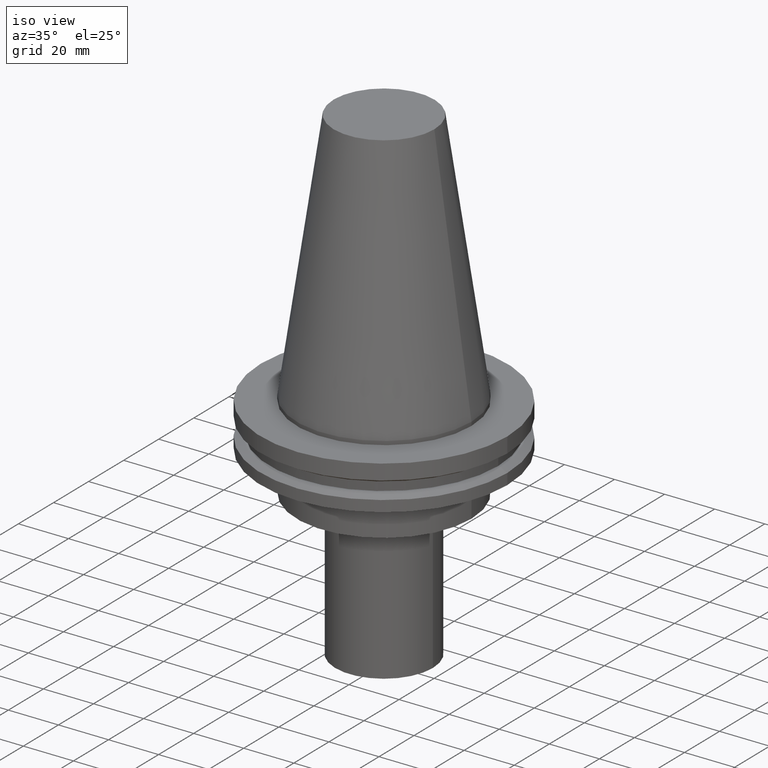
[diagram: clean part render]
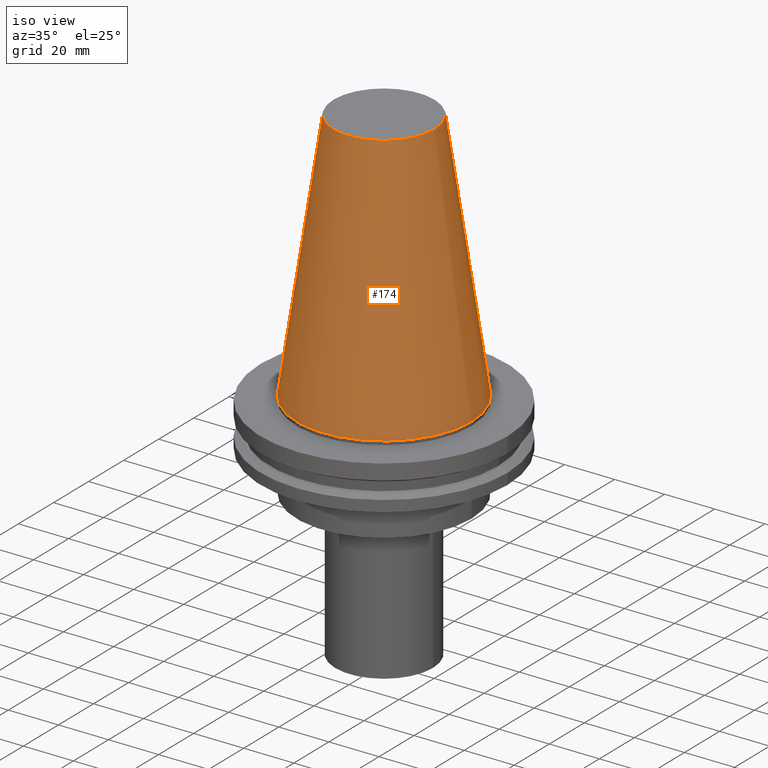
[diagram: tour spotlight — one face highlighted and labeled with its STEP entity id]
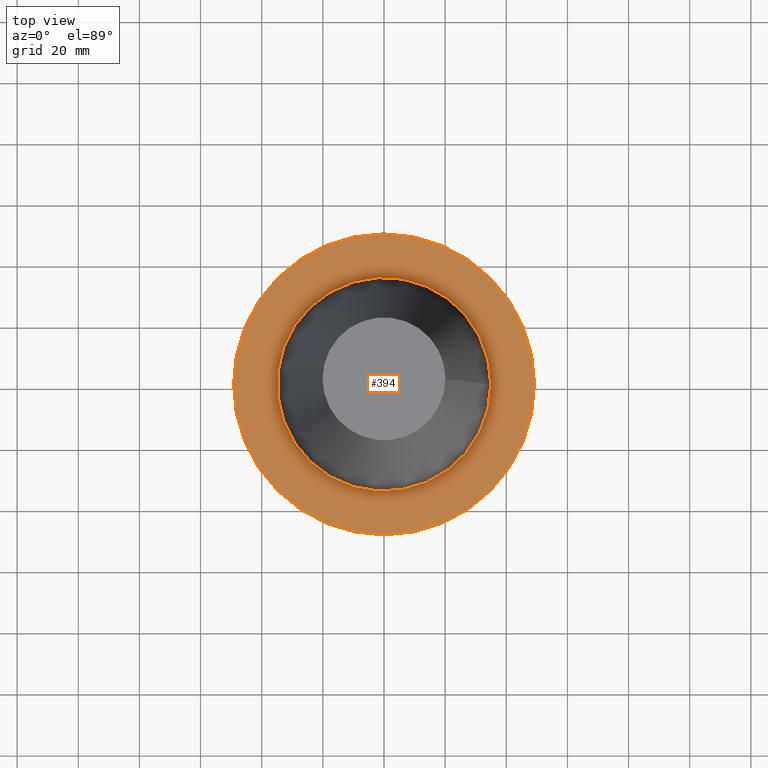
[diagram: tour spotlight — one face highlighted and labeled with its STEP entity id]
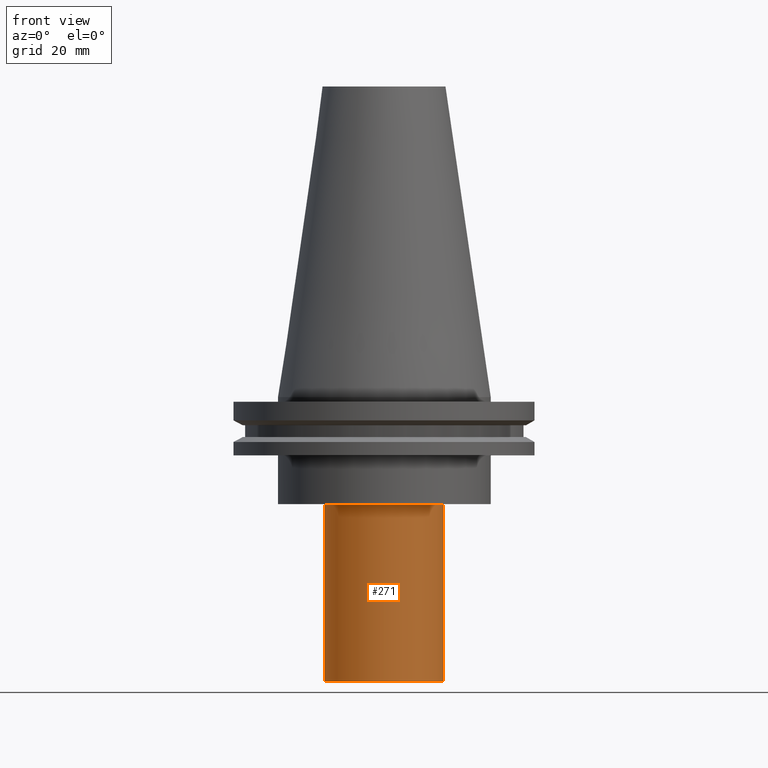
[diagram: tour spotlight — one face highlighted and labeled with its STEP entity id]
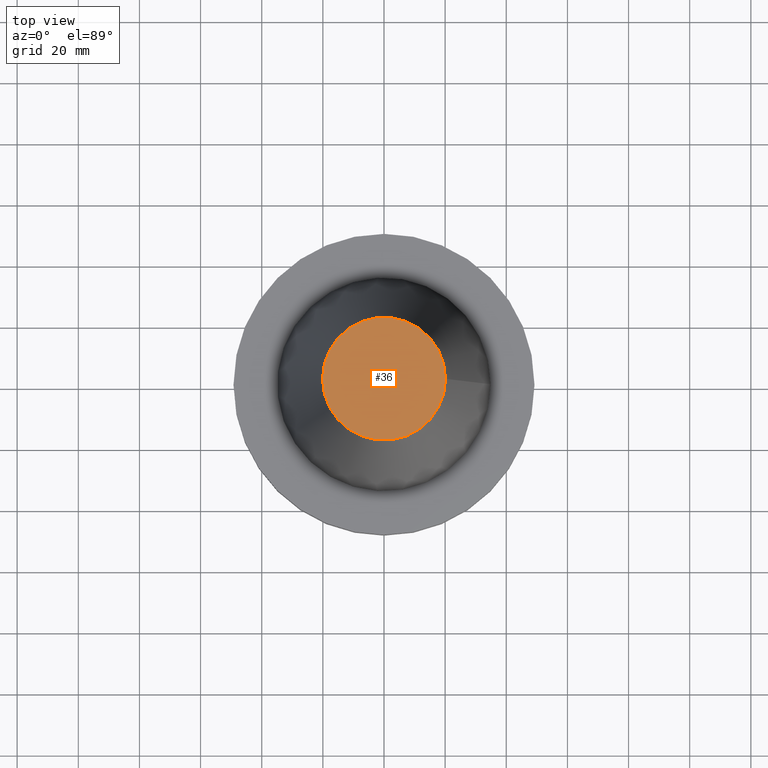
[diagram: tour spotlight — one face highlighted and labeled with its STEP entity id]
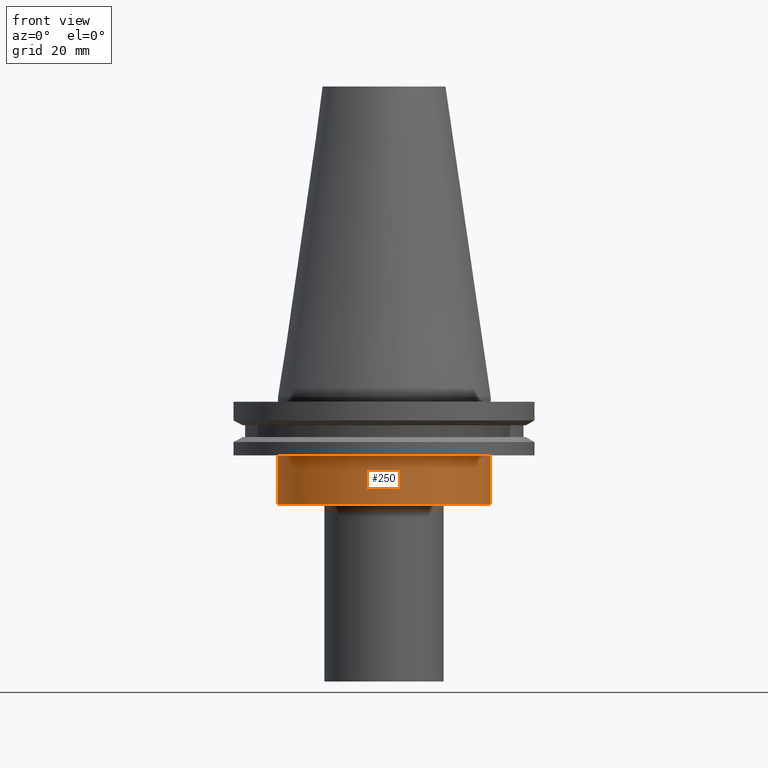
[diagram: tour spotlight — one face highlighted and labeled with its STEP entity id]
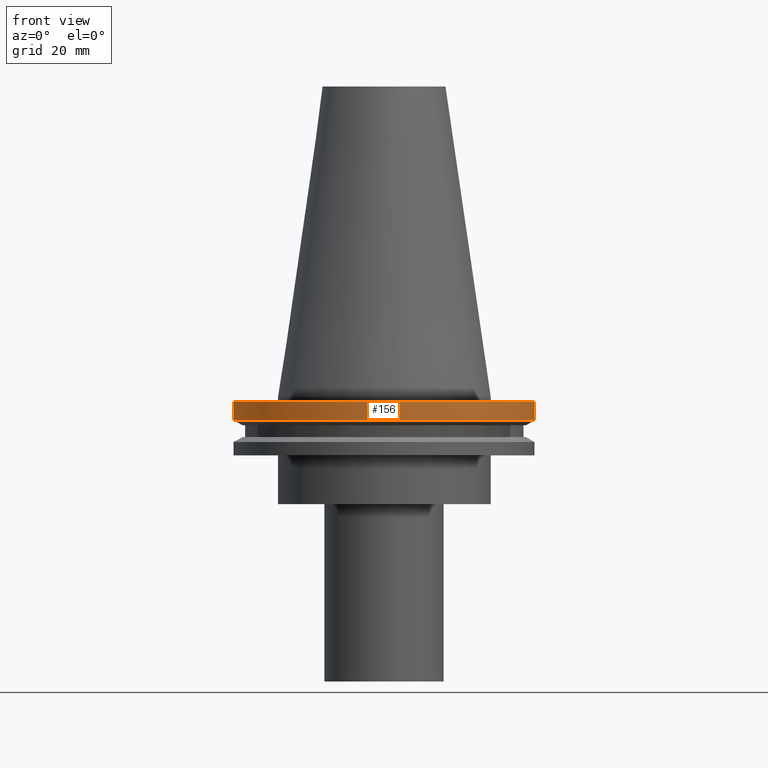
[diagram: tour spotlight — one face highlighted and labeled with its STEP entity id]
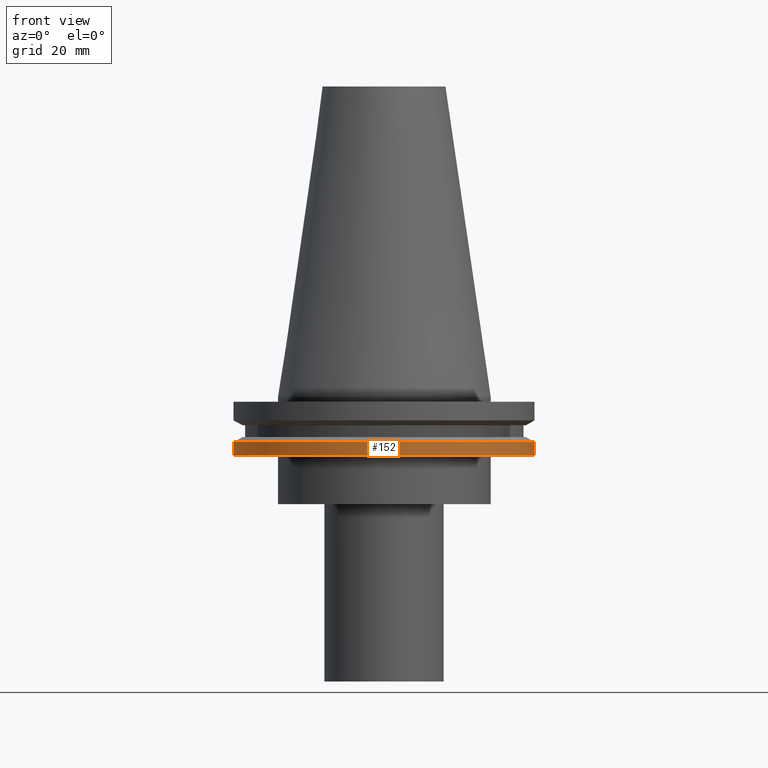
[diagram: tour spotlight — one face highlighted and labeled with its STEP entity id]
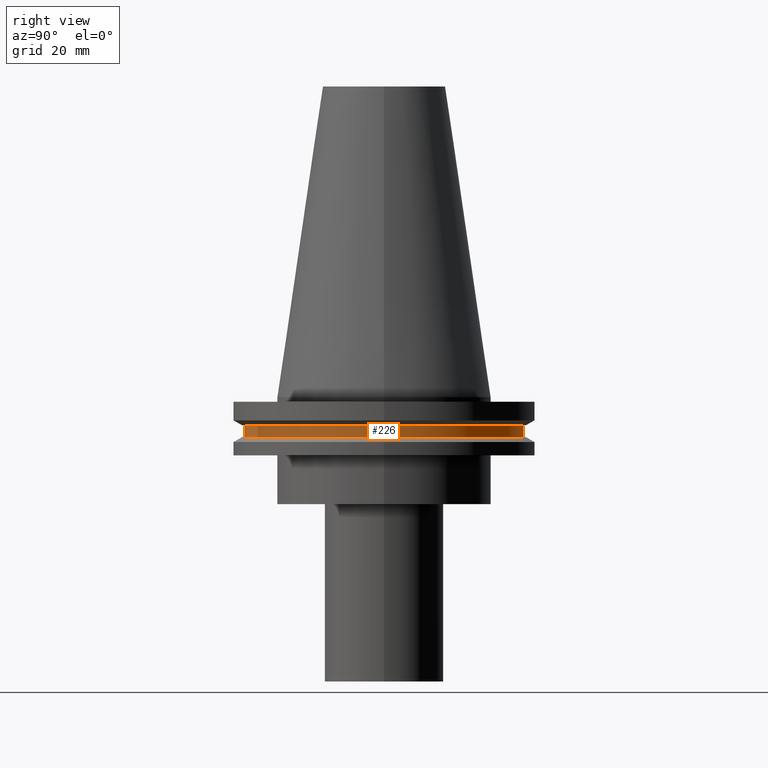
[diagram: tour spotlight — one face highlighted and labeled with its STEP entity id]
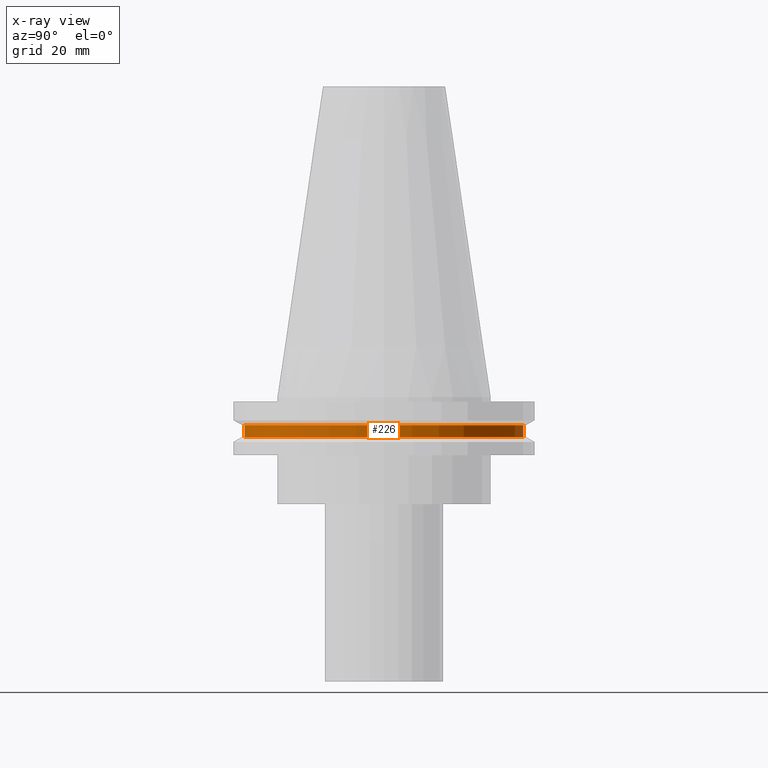
[diagram: x-ray of the same camera — body ghosted, this tour face saturated]
A machine part: a face-by-face anatomy tour. The part has 16 B-rep faces; the first image is the clean iso view, then the 8 largest visible faces are spotlighted one at a time (largest first), each with its STEP entity span.

Face 1 — iso view, entity #174. In plain terms, the highlighted conical surface has half-angle 8.297 deg.
Definition (entity closure, byte-faithful):
#22 = ORIENTED_EDGE ( 'NONE', *, *, #234, .T. ) ;
#29 = CIRCLE ( 'NONE', #160, 20.10819343178871321 ) ;
#34 = AXIS2_PLACEMENT_3D ( 'NONE', #340, #65, #283 ) ;
#65 = DIRECTION ( 'NONE',  ( -0.000000000000000000, -0.000000000000000000, 1.000000000000000000 ) ) ;
#67 = DIRECTION ( 'NONE',  ( -1.000000000000000000, 0.000000000000000000, 0.000000000000000000 ) ) ;
#76 = DIRECTION ( 'NONE',  ( -0.000000000000000000, -0.000000000000000000, 1.000000000000000000 ) ) ;
#88 = VERTEX_POINT ( 'NONE', #97 ) ;
#97 = CARTESIAN_POINT ( 'NONE',  ( 20.10819343178871321, 0.000000000000000000, 101.5999999999999801 ) ) ;
#113 = VERTEX_POINT ( 'NONE', #301 ) ;
#115 = EDGE_LOOP ( 'NONE', ( #22 ) ) ;
#120 = CIRCLE ( 'NONE', #34, 34.92499999999999005 ) ;
#160 = AXIS2_PLACEMENT_3D ( 'NONE', #238, #76, #389 ) ;
#165 = FACE_OUTER_BOUND ( 'NONE', #115, .T. ) ;
#174 = ADVANCED_FACE ( 'NONE', ( #317, #165 ), #299, .T. ) ;
#219 = EDGE_LOOP ( 'NONE', ( #220 ) ) ;
#220 = ORIENTED_EDGE ( 'NONE', *, *, #339, .F. ) ;
#234 = EDGE_CURVE ( 'NONE', #113, #113, #120, .T. ) ;
#238 = CARTESIAN_POINT ( 'NONE',  ( 0.000000000000000000, 0.000000000000000000, 101.5999999999999801 ) ) ;
#278 = AXIS2_PLACEMENT_3D ( 'NONE', #382, #286, #67 ) ;
#283 = DIRECTION ( 'NONE',  ( 1.000000000000000000, 0.000000000000000000, 0.000000000000000000 ) ) ;
#286 = DIRECTION ( 'NONE',  ( 0.000000000000000000, 0.000000000000000000, -1.000000000000000000 ) ) ;
#299 = CONICAL_SURFACE ( 'NONE', #278, 34.92499999999999005, 0.1448138465474119452 ) ;
#301 = CARTESIAN_POINT ( 'NONE',  ( 34.92499999999999005, 0.000000000000000000, 0.000000000000000000 ) ) ;
#317 = FACE_BOUND ( 'NONE', #219, .T. ) ;
#339 = EDGE_CURVE ( 'NONE', #88, #88, #29, .T. ) ;
#340 = CARTESIAN_POINT ( 'NONE',  ( 0.000000000000000000, 0.000000000000000000, 0.000000000000000000 ) ) ;
#382 = CARTESIAN_POINT ( 'NONE',  ( 0.000000000000000000, 0.000000000000000000, 0.000000000000000000 ) ) ;
#389 = DIRECTION ( 'NONE',  ( 1.000000000000000000, 0.000000000000000000, 0.000000000000000000 ) ) ;

Face 2 — top view, entity #394. In plain terms, the highlighted planar face has unit normal (0, 0, -1).
Definition (entity closure, byte-faithful):
#20 = FACE_BOUND ( 'NONE', #62, .T. ) ;
#25 = PLANE ( 'NONE',  #74 ) ;
#45 = CARTESIAN_POINT ( 'NONE',  ( 0.000000000000000000, 0.000000000000000000, -1.499999999999987566 ) ) ;
#52 = FACE_OUTER_BOUND ( 'NONE', #55, .T. ) ;
#55 = EDGE_LOOP ( 'NONE', ( #270 ) ) ;
#62 = EDGE_LOOP ( 'NONE', ( #122 ) ) ;
#74 = AXIS2_PLACEMENT_3D ( 'NONE', #146, #266, #204 ) ;
#101 = DIRECTION ( 'NONE',  ( -0.000000000000000000, -0.000000000000000000, 1.000000000000000000 ) ) ;
#110 = CARTESIAN_POINT ( 'NONE',  ( 0.000000000000000000, 0.000000000000000000, -1.499999999999987566 ) ) ;
#117 = CARTESIAN_POINT ( 'NONE',  ( 49.21499999999999631, 0.000000000000000000, -1.499999999999987566 ) ) ;
#121 = VERTEX_POINT ( 'NONE', #186 ) ;
#122 = ORIENTED_EDGE ( 'NONE', *, *, #370, .F. ) ;
#146 = CARTESIAN_POINT ( 'NONE',  ( 0.000000000000000000, 49.21499999999999631, -1.499999999999992895 ) ) ;
#163 = EDGE_CURVE ( 'NONE', #360, #360, #368, .T. ) ;
#186 = CARTESIAN_POINT ( 'NONE',  ( 34.92499999999999005, 0.000000000000000000, -1.499999999999987566 ) ) ;
#204 = DIRECTION ( 'NONE',  ( -1.000000000000000000, 0.000000000000000000, -0.000000000000000000 ) ) ;
#227 = DIRECTION ( 'NONE',  ( 1.000000000000000000, 0.000000000000000000, 0.000000000000000000 ) ) ;
#253 = CIRCLE ( 'NONE', #260, 34.92499999999999005 ) ;
#260 = AXIS2_PLACEMENT_3D ( 'NONE', #110, #357, #386 ) ;
#266 = DIRECTION ( 'NONE',  ( 0.000000000000000000, 0.000000000000000000, -1.000000000000000000 ) ) ;
#270 = ORIENTED_EDGE ( 'NONE', *, *, #163, .T. ) ;
#357 = DIRECTION ( 'NONE',  ( -0.000000000000000000, -0.000000000000000000, 1.000000000000000000 ) ) ;
#360 = VERTEX_POINT ( 'NONE', #117 ) ;
#368 = CIRCLE ( 'NONE', #371, 49.21499999999999631 ) ;
#370 = EDGE_CURVE ( 'NONE', #121, #121, #253, .T. ) ;
#371 = AXIS2_PLACEMENT_3D ( 'NONE', #45, #101, #227 ) ;
#386 = DIRECTION ( 'NONE',  ( 1.000000000000000000, 0.000000000000000000, 0.000000000000000000 ) ) ;
#394 = ADVANCED_FACE ( 'NONE', ( #20, #52 ), #25, .F. ) ;

Face 3 — front view, entity #271. In plain terms, the highlighted cylindrical surface (bore or boss wall) has radius 19.5 mm, axis along (-0, -0, 1).
Definition (entity closure, byte-faithful):
#42 = DIRECTION ( 'NONE',  ( 1.000000000000000000, 0.000000000000000000, 0.000000000000000000 ) ) ;
#56 = CARTESIAN_POINT ( 'NONE',  ( 19.50000000000000000, 0.000000000000000000, -35.00000000000000000 ) ) ;
#60 = EDGE_LOOP ( 'NONE', ( #358 ) ) ;
#63 = CIRCLE ( 'NONE', #83, 19.50000000000000000 ) ;
#72 = FACE_OUTER_BOUND ( 'NONE', #60, .T. ) ;
#83 = AXIS2_PLACEMENT_3D ( 'NONE', #99, #315, #42 ) ;
#99 = CARTESIAN_POINT ( 'NONE',  ( 0.000000000000000000, 0.000000000000000000, -35.00000000000000000 ) ) ;
#116 = VERTEX_POINT ( 'NONE', #56 ) ;
#123 = VERTEX_POINT ( 'NONE', #338 ) ;
#159 = CYLINDRICAL_SURFACE ( 'NONE', #289, 19.50000000000000000 ) ;
#167 = CARTESIAN_POINT ( 'NONE',  ( 0.000000000000000000, 0.000000000000000000, 0.000000000000000000 ) ) ;
#170 = CARTESIAN_POINT ( 'NONE',  ( 0.000000000000000000, 0.000000000000000000, -92.99999999999997158 ) ) ;
#179 = CIRCLE ( 'NONE', #353, 19.50000000000000000 ) ;
#197 = DIRECTION ( 'NONE',  ( 1.000000000000000000, 0.000000000000000000, 0.000000000000000000 ) ) ;
#231 = DIRECTION ( 'NONE',  ( -0.000000000000000000, -0.000000000000000000, 1.000000000000000000 ) ) ;
#264 = DIRECTION ( 'NONE',  ( -0.000000000000000000, -0.000000000000000000, 1.000000000000000000 ) ) ;
#271 = ADVANCED_FACE ( 'NONE', ( #350, #72 ), #159, .T. ) ;
#289 = AXIS2_PLACEMENT_3D ( 'NONE', #167, #231, #197 ) ;
#296 = EDGE_CURVE ( 'NONE', #116, #116, #63, .T. ) ;
#315 = DIRECTION ( 'NONE',  ( -0.000000000000000000, -0.000000000000000000, 1.000000000000000000 ) ) ;
#338 = CARTESIAN_POINT ( 'NONE',  ( 19.50000000000000000, 0.000000000000000000, -92.99999999999997158 ) ) ;
#350 = FACE_OUTER_BOUND ( 'NONE', #367, .T. ) ;
#353 = AXIS2_PLACEMENT_3D ( 'NONE', #170, #264, #391 ) ;
#354 = EDGE_CURVE ( 'NONE', #123, #123, #179, .T. ) ;
#358 = ORIENTED_EDGE ( 'NONE', *, *, #354, .T. ) ;
#365 = ORIENTED_EDGE ( 'NONE', *, *, #296, .F. ) ;
#367 = EDGE_LOOP ( 'NONE', ( #365 ) ) ;
#391 = DIRECTION ( 'NONE',  ( 1.000000000000000000, 0.000000000000000000, 0.000000000000000000 ) ) ;

Face 4 — top view, entity #36. In plain terms, the highlighted planar face has unit normal (0, 0, -1).
Definition (entity closure, byte-faithful):
#29 = CIRCLE ( 'NONE', #160, 20.10819343178871321 ) ;
#31 = PLANE ( 'NONE',  #81 ) ;
#36 = ADVANCED_FACE ( 'NONE', ( #124 ), #31, .F. ) ;
#37 = EDGE_LOOP ( 'NONE', ( #185 ) ) ;
#76 = DIRECTION ( 'NONE',  ( -0.000000000000000000, -0.000000000000000000, 1.000000000000000000 ) ) ;
#81 = AXIS2_PLACEMENT_3D ( 'NONE', #279, #183, #375 ) ;
#88 = VERTEX_POINT ( 'NONE', #97 ) ;
#97 = CARTESIAN_POINT ( 'NONE',  ( 20.10819343178871321, 0.000000000000000000, 101.5999999999999801 ) ) ;
#124 = FACE_OUTER_BOUND ( 'NONE', #37, .T. ) ;
#160 = AXIS2_PLACEMENT_3D ( 'NONE', #238, #76, #389 ) ;
#183 = DIRECTION ( 'NONE',  ( 0.000000000000000000, 0.000000000000000000, -1.000000000000000000 ) ) ;
#185 = ORIENTED_EDGE ( 'NONE', *, *, #339, .T. ) ;
#238 = CARTESIAN_POINT ( 'NONE',  ( 0.000000000000000000, 0.000000000000000000, 101.5999999999999801 ) ) ;
#279 = CARTESIAN_POINT ( 'NONE',  ( 0.000000000000000000, 20.10819343178871321, 101.5999999999999943 ) ) ;
#339 = EDGE_CURVE ( 'NONE', #88, #88, #29, .T. ) ;
#375 = DIRECTION ( 'NONE',  ( -1.000000000000000000, 0.000000000000000000, -0.000000000000000000 ) ) ;
#389 = DIRECTION ( 'NONE',  ( 1.000000000000000000, 0.000000000000000000, 0.000000000000000000 ) ) ;

Face 5 — front view, entity #250. In plain terms, the highlighted cylindrical surface (bore or boss wall) has radius 34.925 mm, axis along (-0, -0, 1).
Definition (entity closure, byte-faithful):
#3 = VERTEX_POINT ( 'NONE', #374 ) ;
#13 = FACE_OUTER_BOUND ( 'NONE', #326, .T. ) ;
#39 = DIRECTION ( 'NONE',  ( -0.000000000000000000, -0.000000000000000000, 1.000000000000000000 ) ) ;
#82 = DIRECTION ( 'NONE',  ( 1.000000000000000000, 0.000000000000000000, 0.000000000000000000 ) ) ;
#119 = CIRCLE ( 'NONE', #128, 34.92499999999999716 ) ;
#128 = AXIS2_PLACEMENT_3D ( 'NONE', #377, #39, #199 ) ;
#129 = DIRECTION ( 'NONE',  ( -0.000000000000000000, -0.000000000000000000, 1.000000000000000000 ) ) ;
#134 = FACE_OUTER_BOUND ( 'NONE', #169, .T. ) ;
#169 = EDGE_LOOP ( 'NONE', ( #304 ) ) ;
#175 = DIRECTION ( 'NONE',  ( -0.000000000000000000, -0.000000000000000000, 1.000000000000000000 ) ) ;
#177 = VERTEX_POINT ( 'NONE', #245 ) ;
#199 = DIRECTION ( 'NONE',  ( 1.000000000000000000, 0.000000000000000000, 0.000000000000000000 ) ) ;
#245 = CARTESIAN_POINT ( 'NONE',  ( 34.92499999999999716, 0.000000000000000000, -35.00000000000000000 ) ) ;
#250 = ADVANCED_FACE ( 'NONE', ( #13, #134 ), #285, .T. ) ;
#255 = DIRECTION ( 'NONE',  ( 1.000000000000000000, 0.000000000000000000, 0.000000000000000000 ) ) ;
#259 = CARTESIAN_POINT ( 'NONE',  ( 0.000000000000000000, 0.000000000000000000, 101.5999999999999943 ) ) ;
#282 = AXIS2_PLACEMENT_3D ( 'NONE', #259, #129, #255 ) ;
#284 = EDGE_CURVE ( 'NONE', #177, #177, #119, .T. ) ;
#285 = CYLINDRICAL_SURFACE ( 'NONE', #282, 34.92499999999999716 ) ;
#293 = CARTESIAN_POINT ( 'NONE',  ( 0.000000000000000000, 0.000000000000000000, -19.04999999999999716 ) ) ;
#304 = ORIENTED_EDGE ( 'NONE', *, *, #284, .T. ) ;
#307 = CIRCLE ( 'NONE', #345, 34.92499999999999716 ) ;
#326 = EDGE_LOOP ( 'NONE', ( #395 ) ) ;
#345 = AXIS2_PLACEMENT_3D ( 'NONE', #293, #175, #82 ) ;
#361 = EDGE_CURVE ( 'NONE', #3, #3, #307, .T. ) ;
#374 = CARTESIAN_POINT ( 'NONE',  ( 34.92499999999999716, 0.000000000000000000, -19.04999999999999716 ) ) ;
#377 = CARTESIAN_POINT ( 'NONE',  ( 0.000000000000000000, 0.000000000000000000, -35.00000000000000000 ) ) ;
#395 = ORIENTED_EDGE ( 'NONE', *, *, #361, .F. ) ;

Face 6 — front view, entity #156. In plain terms, the highlighted cylindrical surface (bore or boss wall) has radius 49.215 mm, axis along (-0, -0, 1).
Definition (entity closure, byte-faithful):
#16 = CARTESIAN_POINT ( 'NONE',  ( 0.000000000000000000, 0.000000000000000000, 101.5999999999999943 ) ) ;
#38 = DIRECTION ( 'NONE',  ( 1.000000000000000000, 0.000000000000000000, 0.000000000000000000 ) ) ;
#45 = CARTESIAN_POINT ( 'NONE',  ( 0.000000000000000000, 0.000000000000000000, -1.499999999999987566 ) ) ;
#61 = EDGE_CURVE ( 'NONE', #142, #142, #193, .T. ) ;
#79 = CARTESIAN_POINT ( 'NONE',  ( 49.21500000000000341, 0.000000000000000000, -7.602389855251287187 ) ) ;
#94 = ORIENTED_EDGE ( 'NONE', *, *, #163, .F. ) ;
#96 = CARTESIAN_POINT ( 'NONE',  ( 0.000000000000000000, 0.000000000000000000, -7.602389855251287187 ) ) ;
#101 = DIRECTION ( 'NONE',  ( -0.000000000000000000, -0.000000000000000000, 1.000000000000000000 ) ) ;
#107 = CYLINDRICAL_SURFACE ( 'NONE', #344, 49.21499999999999631 ) ;
#117 = CARTESIAN_POINT ( 'NONE',  ( 49.21499999999999631, 0.000000000000000000, -1.499999999999987566 ) ) ;
#118 = ORIENTED_EDGE ( 'NONE', *, *, #61, .T. ) ;
#142 = VERTEX_POINT ( 'NONE', #79 ) ;
#156 = ADVANCED_FACE ( 'NONE', ( #189, #166 ), #107, .T. ) ;
#163 = EDGE_CURVE ( 'NONE', #360, #360, #368, .T. ) ;
#166 = FACE_OUTER_BOUND ( 'NONE', #214, .T. ) ;
#189 = FACE_OUTER_BOUND ( 'NONE', #372, .T. ) ;
#193 = CIRCLE ( 'NONE', #267, 49.21500000000000341 ) ;
#214 = EDGE_LOOP ( 'NONE', ( #118 ) ) ;
#221 = DIRECTION ( 'NONE',  ( -0.000000000000000000, -0.000000000000000000, 1.000000000000000000 ) ) ;
#227 = DIRECTION ( 'NONE',  ( 1.000000000000000000, 0.000000000000000000, 0.000000000000000000 ) ) ;
#233 = DIRECTION ( 'NONE',  ( -0.000000000000000000, -0.000000000000000000, 1.000000000000000000 ) ) ;
#267 = AXIS2_PLACEMENT_3D ( 'NONE', #96, #221, #38 ) ;
#288 = DIRECTION ( 'NONE',  ( 1.000000000000000000, 0.000000000000000000, 0.000000000000000000 ) ) ;
#344 = AXIS2_PLACEMENT_3D ( 'NONE', #16, #233, #288 ) ;
#360 = VERTEX_POINT ( 'NONE', #117 ) ;
#368 = CIRCLE ( 'NONE', #371, 49.21499999999999631 ) ;
#371 = AXIS2_PLACEMENT_3D ( 'NONE', #45, #101, #227 ) ;
#372 = EDGE_LOOP ( 'NONE', ( #94 ) ) ;

Face 7 — front view, entity #152. In plain terms, the highlighted cylindrical surface (bore or boss wall) has radius 49.215 mm, axis along (-0, -0, 1).
Definition (entity closure, byte-faithful):
#1 = CIRCLE ( 'NONE', #322, 49.21499999999998920 ) ;
#43 = DIRECTION ( 'NONE',  ( 1.000000000000000000, 0.000000000000000000, 0.000000000000000000 ) ) ;
#51 = EDGE_CURVE ( 'NONE', #324, #324, #1, .T. ) ;
#69 = CARTESIAN_POINT ( 'NONE',  ( 0.000000000000000000, 0.000000000000000000, 101.5999999999999943 ) ) ;
#111 = EDGE_LOOP ( 'NONE', ( #218 ) ) ;
#114 = CARTESIAN_POINT ( 'NONE',  ( 49.21499999999998920, 0.000000000000000000, -14.65761014474876944 ) ) ;
#127 = EDGE_CURVE ( 'NONE', #144, #144, #228, .T. ) ;
#144 = VERTEX_POINT ( 'NONE', #114 ) ;
#149 = AXIS2_PLACEMENT_3D ( 'NONE', #291, #379, #43 ) ;
#151 = CARTESIAN_POINT ( 'NONE',  ( 0.000000000000000000, 0.000000000000000000, -19.04999999999999716 ) ) ;
#152 = ADVANCED_FACE ( 'NONE', ( #342, #319 ), #348, .T. ) ;
#178 = ORIENTED_EDGE ( 'NONE', *, *, #51, .T. ) ;
#191 = DIRECTION ( 'NONE',  ( 1.000000000000000000, 0.000000000000000000, 0.000000000000000000 ) ) ;
#194 = DIRECTION ( 'NONE',  ( -0.000000000000000000, -0.000000000000000000, 1.000000000000000000 ) ) ;
#218 = ORIENTED_EDGE ( 'NONE', *, *, #127, .F. ) ;
#228 = CIRCLE ( 'NONE', #149, 49.21499999999998920 ) ;
#272 = CARTESIAN_POINT ( 'NONE',  ( 49.21499999999998920, 0.000000000000000000, -19.04999999999999716 ) ) ;
#291 = CARTESIAN_POINT ( 'NONE',  ( 0.000000000000000000, 0.000000000000000000, -14.65761014474876944 ) ) ;
#306 = DIRECTION ( 'NONE',  ( 1.000000000000000000, 0.000000000000000000, 0.000000000000000000 ) ) ;
#313 = AXIS2_PLACEMENT_3D ( 'NONE', #69, #194, #191 ) ;
#319 = FACE_OUTER_BOUND ( 'NONE', #332, .T. ) ;
#322 = AXIS2_PLACEMENT_3D ( 'NONE', #151, #335, #306 ) ;
#324 = VERTEX_POINT ( 'NONE', #272 ) ;
#332 = EDGE_LOOP ( 'NONE', ( #178 ) ) ;
#335 = DIRECTION ( 'NONE',  ( -0.000000000000000000, -0.000000000000000000, 1.000000000000000000 ) ) ;
#342 = FACE_OUTER_BOUND ( 'NONE', #111, .T. ) ;
#348 = CYLINDRICAL_SURFACE ( 'NONE', #313, 49.21499999999998920 ) ;
#379 = DIRECTION ( 'NONE',  ( -0.000000000000000000, -0.000000000000000000, 1.000000000000000000 ) ) ;

Face 8 — right view, entity #226. An x-ray twin of the same camera follows (body ghosted, this face saturated) — the face is partly hidden behind the body. In plain terms, the highlighted cylindrical surface (bore or boss wall) has radius 45.645 mm, axis along (-0, -0, 1).
Definition (entity closure, byte-faithful):
#5 = CARTESIAN_POINT ( 'NONE',  ( 0.000000000000000000, 0.000000000000000000, -9.204999999999991189 ) ) ;
#10 = DIRECTION ( 'NONE',  ( 1.000000000000000000, 0.000000000000000000, 0.000000000000000000 ) ) ;
#21 = CARTESIAN_POINT ( 'NONE',  ( 45.64500000000000313, 0.000000000000000000, -9.204999999999991189 ) ) ;
#28 = VERTEX_POINT ( 'NONE', #148 ) ;
#35 = AXIS2_PLACEMENT_3D ( 'NONE', #321, #376, #10 ) ;
#46 = VERTEX_POINT ( 'NONE', #21 ) ;
#57 = EDGE_CURVE ( 'NONE', #46, #46, #247, .T. ) ;
#58 = EDGE_LOOP ( 'NONE', ( #212 ) ) ;
#70 = FACE_OUTER_BOUND ( 'NONE', #388, .T. ) ;
#126 = FACE_OUTER_BOUND ( 'NONE', #58, .T. ) ;
#143 = ORIENTED_EDGE ( 'NONE', *, *, #57, .F. ) ;
#148 = CARTESIAN_POINT ( 'NONE',  ( 45.64500000000000313, 0.000000000000000000, -13.05499999999999794 ) ) ;
#209 = AXIS2_PLACEMENT_3D ( 'NONE', #222, #311, #346 ) ;
#212 = ORIENTED_EDGE ( 'NONE', *, *, #287, .T. ) ;
#216 = AXIS2_PLACEMENT_3D ( 'NONE', #5, #251, #373 ) ;
#217 = CIRCLE ( 'NONE', #35, 45.64500000000000313 ) ;
#222 = CARTESIAN_POINT ( 'NONE',  ( 0.000000000000000000, 0.000000000000000000, 101.5999999999999943 ) ) ;
#226 = ADVANCED_FACE ( 'NONE', ( #70, #126 ), #254, .T. ) ;
#247 = CIRCLE ( 'NONE', #216, 45.64500000000000313 ) ;
#251 = DIRECTION ( 'NONE',  ( -0.000000000000000000, -0.000000000000000000, 1.000000000000000000 ) ) ;
#254 = CYLINDRICAL_SURFACE ( 'NONE', #209, 45.64500000000000313 ) ;
#287 = EDGE_CURVE ( 'NONE', #28, #28, #217, .T. ) ;
#311 = DIRECTION ( 'NONE',  ( -0.000000000000000000, -0.000000000000000000, 1.000000000000000000 ) ) ;
#321 = CARTESIAN_POINT ( 'NONE',  ( 0.000000000000000000, 0.000000000000000000, -13.05499999999999794 ) ) ;
#346 = DIRECTION ( 'NONE',  ( 1.000000000000000000, 0.000000000000000000, 0.000000000000000000 ) ) ;
#373 = DIRECTION ( 'NONE',  ( 1.000000000000000000, 0.000000000000000000, 0.000000000000000000 ) ) ;
#376 = DIRECTION ( 'NONE',  ( -0.000000000000000000, -0.000000000000000000, 1.000000000000000000 ) ) ;
#388 = EDGE_LOOP ( 'NONE', ( #143 ) ) ;